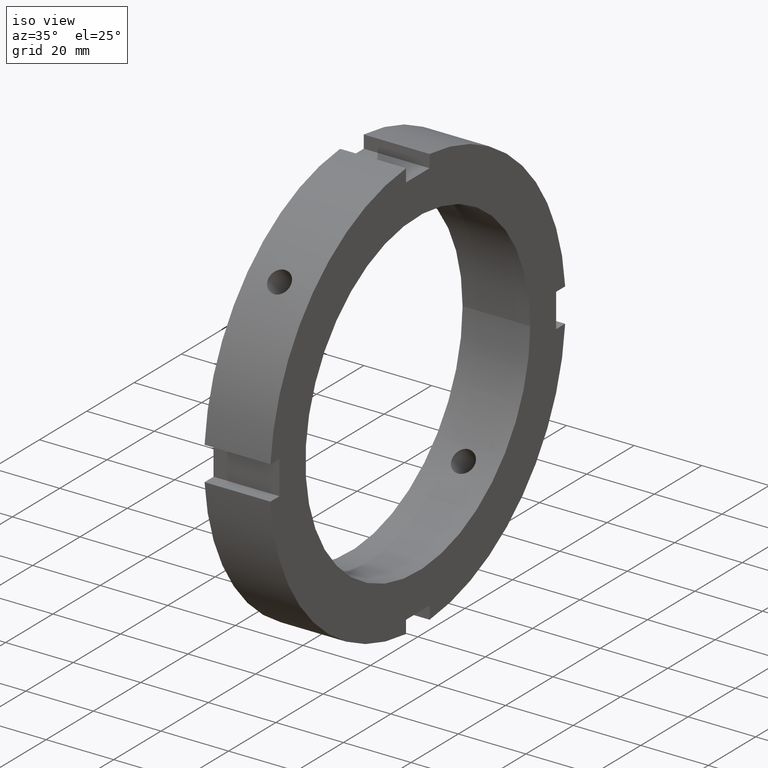
[diagram: clean part render]
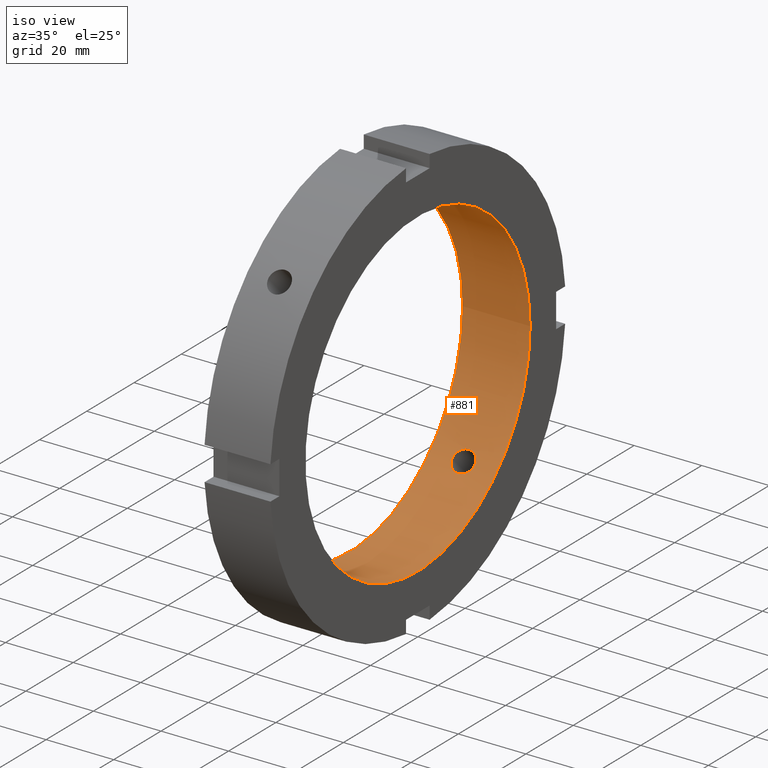
[diagram: same view with one face highlighted and labeled with its STEP entity id]
A machine part, iso view. The second image highlights one B-rep face of the part: STEP entity #881.
In plain terms, the highlighted cylindrical surface (bore or boss wall) has radius 47.5 mm, axis along (1, 0, 0).
Its self-contained STEP definition (entity closure, byte-faithful):
#114=CARTESIAN_POINT('',(9.999999999999991,-35.855325301458045,31.155186526911081));
#115=VERTEX_POINT('',#114);
#116=CARTESIAN_POINT('',(9.999999999999989,-35.855325301458038,31.155186526911095));
#117=CARTESIAN_POINT('',(10.417452583954724,-35.855325301458038,31.155186526911095));
#118=CARTESIAN_POINT('',(10.862637057803223,-35.800615488305176,31.218501222229289));
#119=CARTESIAN_POINT('',(11.681438341710450,-35.576289756606755,31.473901807634430));
#120=CARTESIAN_POINT('',(12.055066747961529,-35.406454536619542,31.665757803168752));
#121=CARTESIAN_POINT('',(12.645071787081012,-35.009924141742054,32.103620536482495));
#122=CARTESIAN_POINT('',(12.900826282465159,-34.756727503952760,32.378814409012520));
#123=CARTESIAN_POINT('',(13.240044159684325,-34.193257818375741,32.973305097937541));
#124=CARTESIAN_POINT('',(13.323499999999990,-33.882755419647921,33.292388793074089));
#125=CARTESIAN_POINT('',(13.323499999999990,-33.292388793074046,33.882755419647964));
#126=CARTESIAN_POINT('',(13.240044159684317,-32.973305097937512,34.193257818375784));
#127=CARTESIAN_POINT('',(12.900826282465152,-32.378814409012485,34.756727503952803));
#128=CARTESIAN_POINT('',(12.645071787081015,-32.103620536482460,35.009924141742090));
#129=CARTESIAN_POINT('',(12.055066747961533,-31.665757803168706,35.406454536619584));
#130=CARTESIAN_POINT('',(11.681438341710448,-31.473901807634384,35.576289756606783));
#131=CARTESIAN_POINT('',(10.862637057803223,-31.218501222229243,35.800615488305212));
#132=CARTESIAN_POINT('',(10.417452583954724,-31.155186526911059,35.855325301458066));
#133=CARTESIAN_POINT('',(9.582547416045257,-31.155186526911059,35.855325301458066));
#134=CARTESIAN_POINT('',(9.137362942196754,-31.218501222229243,35.800615488305198));
#135=CARTESIAN_POINT('',(8.318561658289523,-31.473901807634395,35.576289756606776));
#136=CARTESIAN_POINT('',(7.944933252038449,-31.665757803168731,35.406454536619556));
#137=CARTESIAN_POINT('',(7.354928212918974,-32.103620536482481,35.009924141742069));
#138=CARTESIAN_POINT('',(7.099173717534816,-32.378814409012492,34.756727503952781));
#139=CARTESIAN_POINT('',(6.759955840315662,-32.973305097937512,34.193257818375770));
#140=CARTESIAN_POINT('',(6.676499999999991,-33.292388793074046,33.882755419647957));
#141=CARTESIAN_POINT('',(6.676499999999991,-33.882755419647921,33.292388793074089));
#142=CARTESIAN_POINT('',(6.759955840315659,-34.193257818375741,32.973305097937541));
#143=CARTESIAN_POINT('',(7.099173717534825,-34.756727503952767,32.378814409012520));
#144=CARTESIAN_POINT('',(7.354928212918970,-35.009924141742054,32.103620536482495));
#145=CARTESIAN_POINT('',(7.944933252038453,-35.406454536619542,31.665757803168752));
#146=CARTESIAN_POINT('',(8.318561658289536,-35.576289756606755,31.473901807634427));
#147=CARTESIAN_POINT('',(9.137362942196763,-35.800615488305176,31.218501222229285));
#148=CARTESIAN_POINT('',(9.582547416045259,-35.855325301458045,31.155186526911098));
#149=CARTESIAN_POINT('',(9.999999999999989,-35.855325301458045,31.155186526911098));
#150=B_SPLINE_CURVE_WITH_KNOTS('',3,(#116,#117,#118,#119,#120,#121,#122,#123,#124,#125,#126,#127,#128,#129,#130,#131,#132,#133,#134,#135,#136,#137,#138,#139,#140,#141,#142,#143,#144,#145,#146,#147,#148,#149),.UNSPECIFIED.,.T.,.U.,(4,2,2,2,2,2,2,2,2,2,2,2,2,2,2,2,4),(0.0,0.125235775186419,0.250471550372839,0.375707223883823,0.500942897394808,0.626178570905792,0.751414244416777,0.876650019603196,1.001885794789615,1.127121569976035,1.252357345162455,1.377593018673438,1.502828692184420,1.628064365695405,1.753300039206389,1.878535814392808,2.003771589579228),.UNSPECIFIED.);
#151=EDGE_CURVE('',#115,#115,#150,.T.);
#202=CARTESIAN_POINT('',(9.999999999999991,31.155186526911073,-35.855325301458052));
#203=VERTEX_POINT('',#202);
#204=CARTESIAN_POINT('',(9.999999999999991,31.155186526911077,-35.855325301458059));
#205=CARTESIAN_POINT('',(9.582547416045259,31.155186526911077,-35.855325301458059));
#206=CARTESIAN_POINT('',(9.137362942196759,31.218501222229271,-35.800615488305191));
#207=CARTESIAN_POINT('',(8.318561658289527,31.473901807634412,-35.576289756606762));
#208=CARTESIAN_POINT('',(7.944933252038450,31.665757803168741,-35.406454536619549));
#209=CARTESIAN_POINT('',(7.354928212918972,32.103620536482488,-35.009924141742054));
#210=CARTESIAN_POINT('',(7.099173717534821,32.378814409012506,-34.756727503952774));
#211=CARTESIAN_POINT('',(6.759955840315662,32.973305097937534,-34.193257818375763));
#212=CARTESIAN_POINT('',(6.676499999999991,33.292388793074068,-33.882755419647943));
#213=CARTESIAN_POINT('',(6.676499999999991,33.882755419647943,-33.292388793074068));
#214=CARTESIAN_POINT('',(6.759955840315664,34.193257818375770,-32.973305097937526));
#215=CARTESIAN_POINT('',(7.099173717534829,34.756727503952789,-32.378814409012499));
#216=CARTESIAN_POINT('',(7.354928212918967,35.009924141742069,-32.103620536482474));
#217=CARTESIAN_POINT('',(7.944933252038451,35.406454536619563,-31.665757803168731));
#218=CARTESIAN_POINT('',(8.318561658289532,35.576289756606769,-31.473901807634412));
#219=CARTESIAN_POINT('',(9.137362942196759,35.800615488305198,-31.218501222229271));
#220=CARTESIAN_POINT('',(9.582547416045262,35.855325301458059,-31.155186526911088));
#221=CARTESIAN_POINT('',(10.417452583954724,35.855325301458059,-31.155186526911088));
#222=CARTESIAN_POINT('',(10.862637057803228,35.800615488305183,-31.218501222229268));
#223=CARTESIAN_POINT('',(11.681438341710457,35.576289756606762,-31.473901807634409));
#224=CARTESIAN_POINT('',(12.055066747961533,35.406454536619549,-31.665757803168745));
#225=CARTESIAN_POINT('',(12.645071787081012,35.009924141742054,-32.103620536482495));
#226=CARTESIAN_POINT('',(12.900826282465163,34.756727503952774,-32.378814409012513));
#227=CARTESIAN_POINT('',(13.240044159684320,34.193257818375763,-32.973305097937534));
#228=CARTESIAN_POINT('',(13.323499999999990,33.882755419647943,-33.292388793074075));
#229=CARTESIAN_POINT('',(13.323499999999990,33.292388793074068,-33.882755419647943));
#230=CARTESIAN_POINT('',(13.240044159684320,32.973305097937534,-34.193257818375763));
#231=CARTESIAN_POINT('',(12.900826282465163,32.378814409012513,-34.756727503952774));
#232=CARTESIAN_POINT('',(12.645071787081012,32.103620536482488,-35.009924141742054));
#233=CARTESIAN_POINT('',(12.055066747961533,31.665757803168741,-35.406454536619549));
#234=CARTESIAN_POINT('',(11.681438341710454,31.473901807634412,-35.576289756606769));
#235=CARTESIAN_POINT('',(10.862637057803223,31.218501222229271,-35.800615488305198));
#236=CARTESIAN_POINT('',(10.417452583954724,31.155186526911077,-35.855325301458059));
#237=CARTESIAN_POINT('',(9.999999999999991,31.155186526911077,-35.855325301458059));
#238=B_SPLINE_CURVE_WITH_KNOTS('',3,(#204,#205,#206,#207,#208,#209,#210,#211,#212,#213,#214,#215,#216,#217,#218,#219,#220,#221,#222,#223,#224,#225,#226,#227,#228,#229,#230,#231,#232,#233,#234,#235,#236,#237),.UNSPECIFIED.,.T.,.U.,(4,2,2,2,2,2,2,2,2,2,2,2,2,2,2,2,4),(0.0,0.125235775186420,0.250471550372839,0.375707223883823,0.500942897394806,0.626178570905790,0.751414244416775,0.876650019603194,1.001885794789613,1.127121569976033,1.252357345162452,1.377593018673436,1.502828692184419,1.628064365695402,1.753300039206385,1.878535814392805,2.003771589579225),.UNSPECIFIED.);
#239=EDGE_CURVE('',#203,#203,#238,.T.);
#712=CARTESIAN_POINT('',(19.999999999999989,47.500000000000000,0.0));
#713=VERTEX_POINT('',#712);
#714=CARTESIAN_POINT('',(19.999999999999989,0.0,0.0));
#715=DIRECTION('',(1.0,0.0,0.0));
#716=DIRECTION('',(0.0,1.0,0.0));
#717=AXIS2_PLACEMENT_3D('',#714,#715,#716);
#718=CIRCLE('',#717,47.500000000000000);
#719=EDGE_CURVE('',#713,#713,#718,.T.);
#805=CARTESIAN_POINT('',(-1.364858E-014,47.500000000000000,0.0));
#806=VERTEX_POINT('',#805);
#807=CARTESIAN_POINT('',(-1.364794E-014,0.0,0.0));
#808=DIRECTION('',(1.0,0.0,0.0));
#809=DIRECTION('',(0.0,1.0,0.0));
#810=AXIS2_PLACEMENT_3D('',#807,#808,#809);
#811=CIRCLE('',#810,47.500000000000000);
#812=EDGE_CURVE('',#806,#806,#811,.T.);
#864=CARTESIAN_POINT('',(9.999999999999988,0.0,0.0));
#865=DIRECTION('',(1.0,0.0,0.0));
#866=DIRECTION('',(0.0,1.0,0.0));
#867=AXIS2_PLACEMENT_3D('',#864,#865,#866);
#868=CYLINDRICAL_SURFACE('',#867,47.500000000000000);
#869=ORIENTED_EDGE('',*,*,#812,.F.);
#870=EDGE_LOOP('',(#869));
#871=FACE_OUTER_BOUND('',#870,.T.);
#872=ORIENTED_EDGE('',*,*,#151,.T.);
#873=EDGE_LOOP('',(#872));
#874=FACE_BOUND('',#873,.T.);
#875=ORIENTED_EDGE('',*,*,#239,.T.);
#876=EDGE_LOOP('',(#875));
#877=FACE_BOUND('',#876,.T.);
#878=ORIENTED_EDGE('',*,*,#719,.T.);
#879=EDGE_LOOP('',(#878));
#880=FACE_BOUND('',#879,.T.);
#881=ADVANCED_FACE('',(#871,#874,#877,#880),#868,.F.);